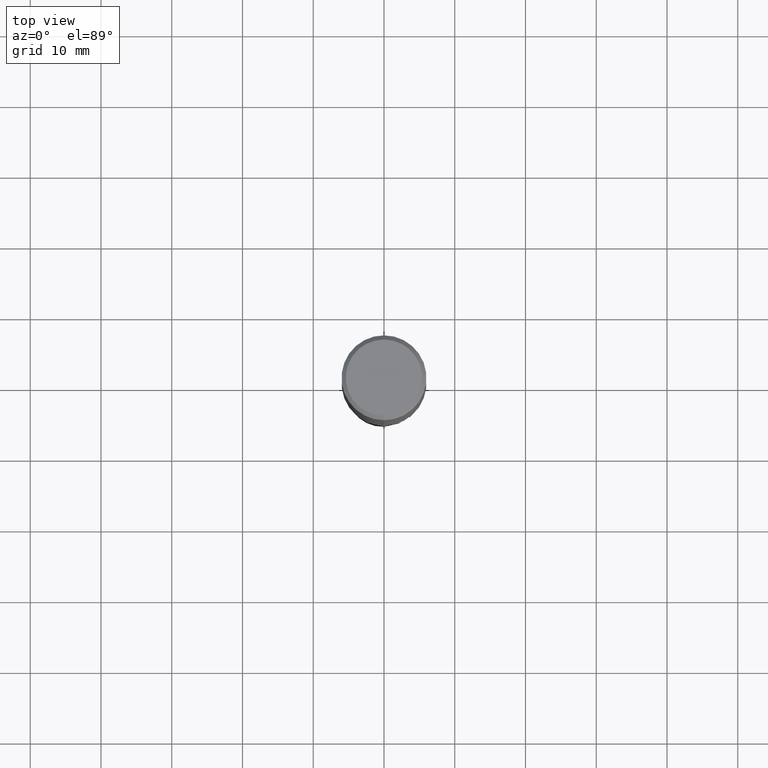
[diagram: clean part render]
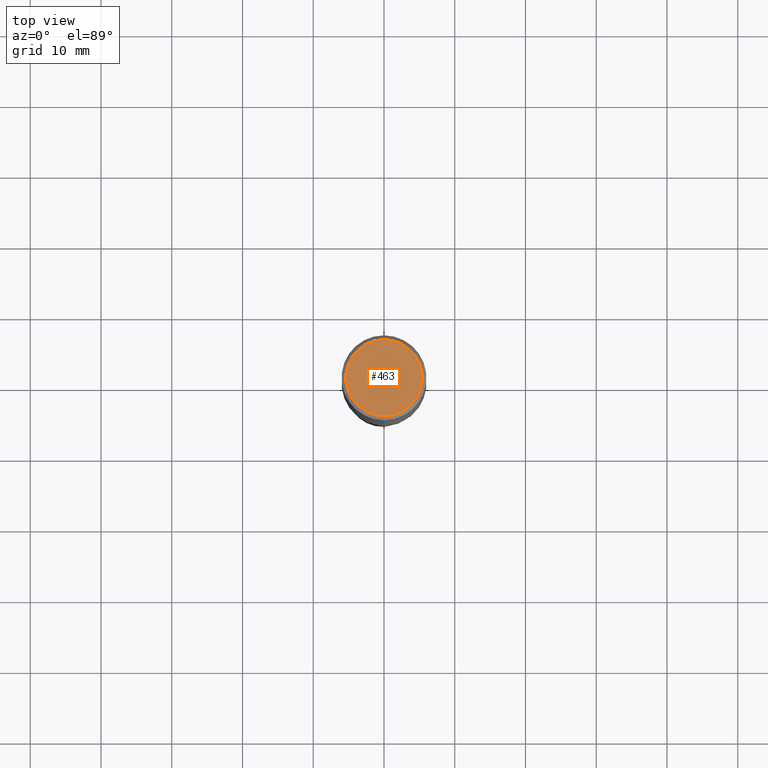
[diagram: same view with one face highlighted and labeled with its STEP entity id]
A machine part, top view. The second image highlights one B-rep face of the part: STEP entity #463.
In plain terms, the highlighted planar face has unit normal (-0, 0, 1).
Its self-contained STEP definition (entity closure, byte-faithful):
#359=EDGE_CURVE('',#689,#377,#858,.T.);
#377=VERTEX_POINT('',#877);
#463=ADVANCED_FACE('',(#974),#975,.T.);
#535=EDGE_CURVE('',#377,#689,#1051,.T.);
#689=VERTEX_POINT('',#1221);
#858=CIRCLE('',#1506,5.4);
#877=CARTESIAN_POINT('',(0.0,5.4,0.0));
#974=FACE_OUTER_BOUND('',#2643,.T.);
#975=PLANE('',#2644);
#1051=CIRCLE('',#3310,5.4);
#1221=CARTESIAN_POINT('',(6.61287431064084E-016,-5.4,0.0));
#1506=AXIS2_PLACEMENT_3D('',#5339,#5340,#5341);
#2643=EDGE_LOOP('',(#5494,#5495));
#2644=AXIS2_PLACEMENT_3D('',#5496,#5497,#5498);
#3310=AXIS2_PLACEMENT_3D('',#5577,#5578,#5579);
#5339=CARTESIAN_POINT('',(0.0,0.0,0.0));
#5340=DIRECTION('',(0.0,0.0,-1.0));
#5341=DIRECTION('',(0.0,1.0,0.0));
#5494=ORIENTED_EDGE('',*,*,#535,.F.);
#5495=ORIENTED_EDGE('',*,*,#359,.F.);
#5496=CARTESIAN_POINT('',(0.0,2.7,0.0));
#5497=DIRECTION('',(-0.0,0.0,1.0));
#5498=DIRECTION('',(0.0,-1.0,0.0));
#5577=CARTESIAN_POINT('',(0.0,0.0,0.0));
#5578=DIRECTION('',(0.0,0.0,-1.0));
#5579=DIRECTION('',(0.0,1.0,0.0));